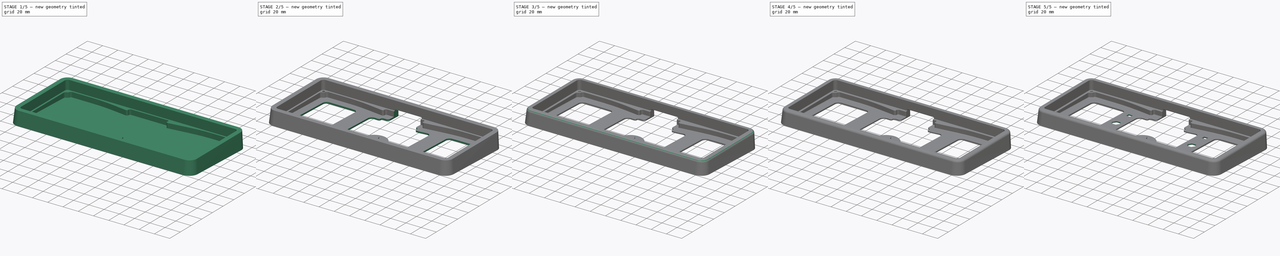
[diagram: build sequence overview — one tinted view per stage of 5, left to right]
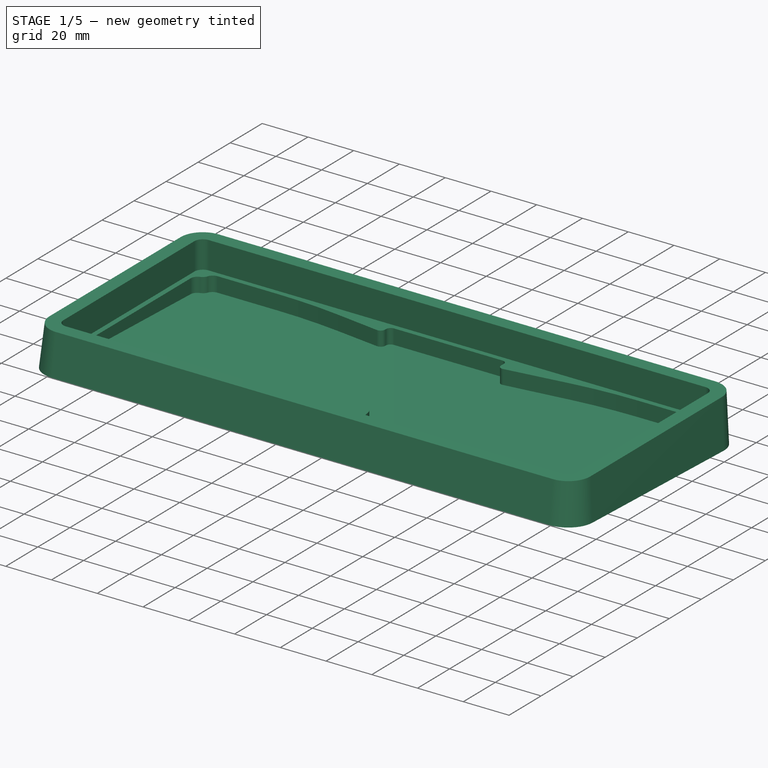
[diagram: stage 1 of 5 — iso view after this stage's code; geometry added in this stage tinted green]
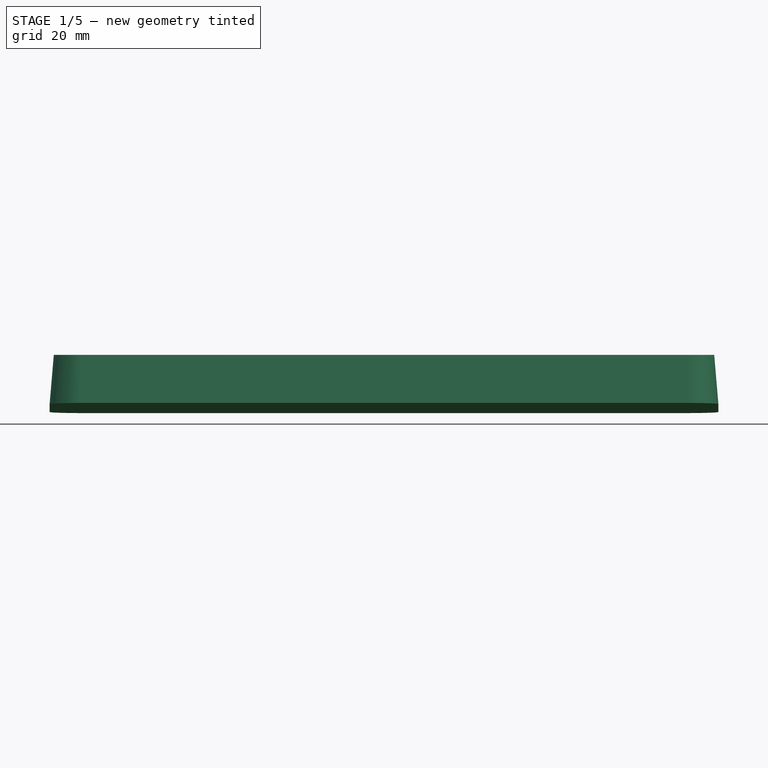
[diagram: stage 1 of 5 — front view after this stage's code; geometry added in this stage tinted green]
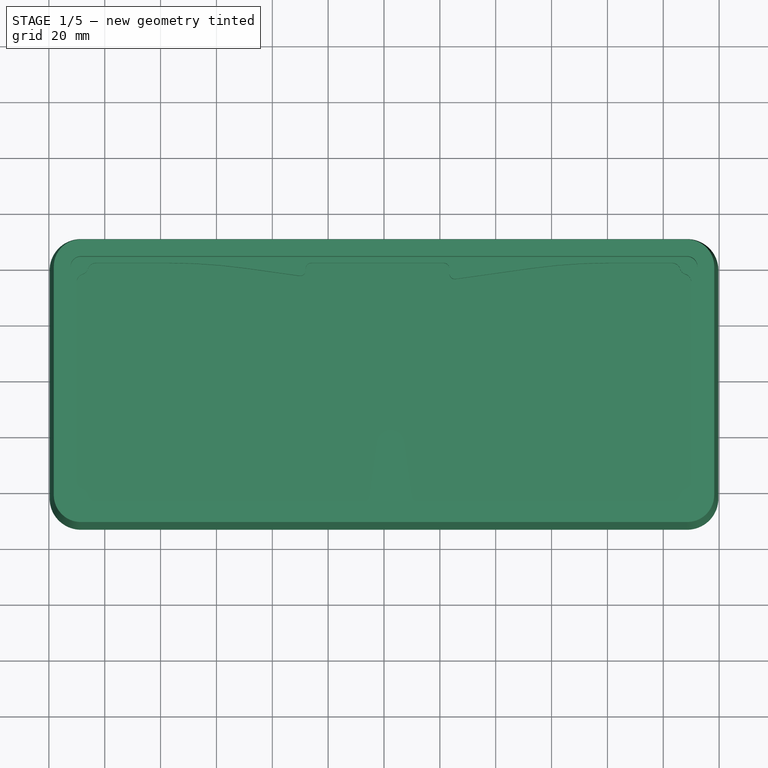
[diagram: stage 1 of 5 — top view after this stage's code; geometry added in this stage tinted green]
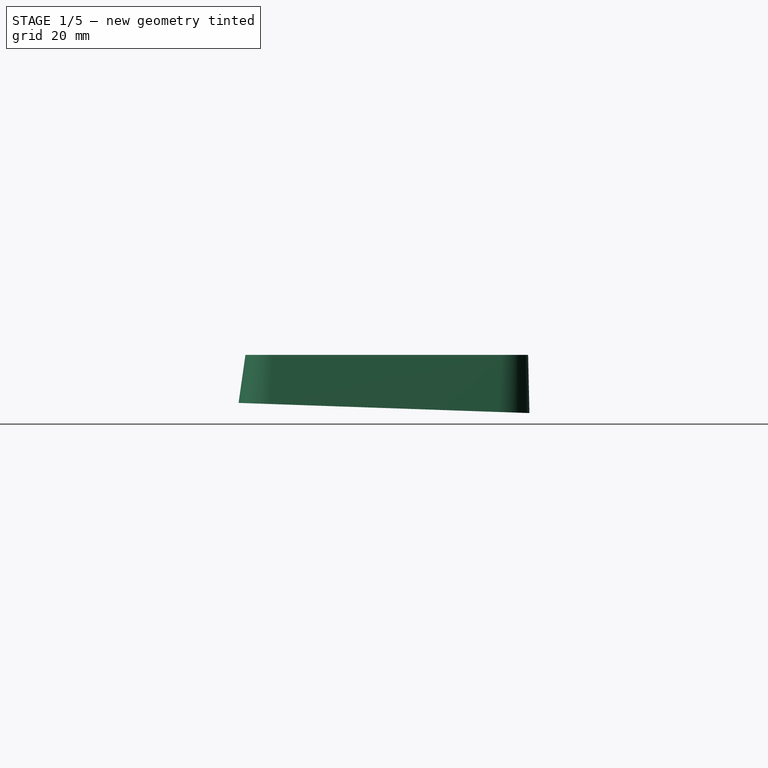
[diagram: stage 1 of 5 — right view after this stage's code; geometry added in this stage tinted green]
FCSTD DOCUMENT  (FreeCAD 0.20R)
Label: case
License: All rights reserved
LicenseURL: http://en.wikipedia.org/wiki/All_rights_reserved
objects: Sketcher::SketchObject×9, PartDesign::Fillet×8, PartDesign::Pocket×6, PartDesign::AdditiveLoft×1, PartDesign::Hole×1, PartDesign::Chamfer×1, PartDesign::Body×1
note: 44 computed .brp shape members not serialized (recipe doc carries the construction recipe); baked Part::Feature solids carry a one-line shape summary decoded from their .brp

FEATURE [Sketcher::SketchObject] Sketch
  AttachmentOffset = pos=(0,-1,0) rot=(1,0,0;-0.034907rad)
  FullyConstrained = false
  MapMode = 5
  Placement = pos=(0,-1,0) rot=(1,0,0;6.24828rad)
  Support = -> [XY_Plane]
  sketch-geometry (8):
    g0: LineSegment StartX=-119.737 StartY=40.9104 StartZ=0 EndX=-119.737 EndY=-40.9104 EndZ=0
    g1: LineSegment StartX=108.537 StartY=52.1104 StartZ=0 EndX=-108.537 EndY=52.1104 EndZ=0
    g2: LineSegment StartX=108.537 StartY=-52.1104 StartZ=0 EndX=-108.537 EndY=-52.1104 EndZ=0
    g3: ArcOfCircle CenterX=108.537 CenterY=-40.9104 CenterZ=0 NormalX=0 NormalY=0 NormalZ=1 AngleXU=0 Radius=11.2 StartAngle=4.71239 EndAngle=6.28319
    g4: ArcOfCircle CenterX=108.537 CenterY=40.9104 CenterZ=0 NormalX=0 NormalY=0 NormalZ=1 AngleXU=0 Radius=11.2 StartAngle=0 EndAngle=1.5708
    g5: LineSegment StartX=119.737 StartY=40.9104 StartZ=0 EndX=119.737 EndY=-40.9104 EndZ=0
    g6: ArcOfCircle CenterX=-108.537 CenterY=40.9104 CenterZ=0 NormalX=0 NormalY=0 NormalZ=1 AngleXU=0 Radius=11.2 StartAngle=1.5708 EndAngle=3.14159
    g7: ArcOfCircle CenterX=-108.537 CenterY=-40.9104 CenterZ=0 NormalX=0 NormalY=0 NormalZ=1 AngleXU=0 Radius=11.2 StartAngle=3.14159 EndAngle=4.71239
  constraints (8):
    c: Coincident(g0,g7)
    c: Coincident(g0,g6)
    c: Coincident(g2,g7)
    c: Coincident(g1,g6)
    c: Coincident(g2,g3)
    c: Coincident(g1,g4)
    c: Coincident(g3,g5)
    c: Coincident(g4,g5)
FEATURE [Sketcher::SketchObject] Sketch001
  AttachmentOffset = pos=(0,0,19) rot=(0,0,1;0rad)
  FullyConstrained = false
  MapMode = 5
  Placement = pos=(0,0,19) rot=(0,0,1;0rad)
  Support = -> [XY_Plane]
  sketch-geometry (8):
    g0: LineSegment StartX=118.237 StartY=40.9104 StartZ=0 EndX=118.237 EndY=-40.9104 EndZ=0
    g1: LineSegment StartX=108.537 StartY=-50.6104 StartZ=0 EndX=-108.537 EndY=-50.6104 EndZ=0
    g2: LineSegment StartX=108.537 StartY=50.6104 StartZ=0 EndX=-108.537 EndY=50.6104 EndZ=0
    g3: ArcOfCircle CenterX=108.537 CenterY=40.9104 CenterZ=0 NormalX=0 NormalY=0 NormalZ=1 AngleXU=0 Radius=9.7 StartAngle=0 EndAngle=1.5708
    g4: ArcOfCircle CenterX=108.537 CenterY=-40.9104 CenterZ=0 NormalX=0 NormalY=0 NormalZ=1 AngleXU=0 Radius=9.7 StartAngle=4.71239 EndAngle=6.28319
    g5: LineSegment StartX=-118.237 StartY=40.9104 StartZ=0 EndX=-118.237 EndY=-40.9104 EndZ=0
    g6: ArcOfCircle CenterX=-108.537 CenterY=-40.9104 CenterZ=0 NormalX=0 NormalY=0 NormalZ=1 AngleXU=0 Radius=9.7 StartAngle=3.14159 EndAngle=4.71239
    g7: ArcOfCircle CenterX=-108.537 CenterY=40.9104 CenterZ=0 NormalX=0 NormalY=0 NormalZ=1 AngleXU=0 Radius=9.7 StartAngle=1.5708 EndAngle=3.14159
  constraints (8):
    c: Coincident(g5,g6)
    c: Coincident(g5,g7)
    c: Coincident(g1,g6)
    c: Coincident(g2,g7)
    c: Coincident(g1,g4)
    c: Coincident(g2,g3)
    c: Coincident(g0,g4)
    c: Coincident(g0,g3)
FEATURE [PartDesign::AdditiveLoft] AdditiveLoft
  Closed = true
  Profile = -> Sketch001
  Ruled = true
  Sections = -> [Sketch]
FEATURE [Sketcher::SketchObject] Sketch002
  FullyConstrained = false
  MapMode = 5
  Placement = pos=(0,0,19) rot=(0,0,1;0rad)
  Support = -> [AdditiveLoft]
  sketch-geometry (8):
    g0: LineSegment StartX=108.537 StartY=44.6104 StartZ=0 EndX=-108.537 EndY=44.6104 EndZ=0
    g1: LineSegment StartX=108.537 StartY=-44.6104 StartZ=0 EndX=-108.537 EndY=-44.6104 EndZ=0
    g2: LineSegment StartX=112.237 StartY=40.9104 StartZ=0 EndX=112.237 EndY=-40.9104 EndZ=0
    g3: LineSegment StartX=-112.237 StartY=40.9104 StartZ=0 EndX=-112.237 EndY=-40.9104 EndZ=0
    g4: ArcOfCircle CenterX=-108.537 CenterY=40.9104 CenterZ=0 NormalX=0 NormalY=0 NormalZ=1 AngleXU=0 Radius=3.7 StartAngle=1.5708 EndAngle=3.14159
    g5: ArcOfCircle CenterX=-108.537 CenterY=-40.9104 CenterZ=0 NormalX=0 NormalY=0 NormalZ=1 AngleXU=0 Radius=3.7 StartAngle=3.14159 EndAngle=4.71239
    g6: ArcOfCircle CenterX=108.537 CenterY=-40.9104 CenterZ=0 NormalX=0 NormalY=0 NormalZ=1 AngleXU=0 Radius=3.7 StartAngle=4.71239 EndAngle=6.28319
    g7: ArcOfCircle CenterX=108.537 CenterY=40.9104 CenterZ=0 NormalX=0 NormalY=0 NormalZ=1 AngleXU=0 Radius=3.7 StartAngle=0 EndAngle=1.5708
  constraints (8):
    c: Coincident(g3,g5)
    c: Coincident(g3,g4)
    c: Coincident(g1,g5)
    c: Coincident(g0,g4)
    c: Coincident(g1,g6)
    c: Coincident(g0,g7)
    c: Coincident(g2,g6)
    c: Coincident(g2,g7)
FEATURE [PartDesign::Pocket] Pocket
  BaseFeature = -> AdditiveLoft
  Direction = (0,0,-1)
  Length = 12
  Length2 = 5
  Profile = -> Sketch002
  ReferenceAxis = -> Sketch002 [N_Axis]
  Type = 0
FEATURE [Sketcher::SketchObject] Sketch003
  FullyConstrained = false
  MapMode = 5
  Placement = pos=(0,0,7) rot=(0,0,1;0rad)
  Support = -> [Pocket]
  sketch-geometry (34):
    g0: LineSegment StartX=-110.037 StartY=35.515 StartZ=0 EndX=-110.037 EndY=-35.515 EndZ=0
    g1: LineSegment StartX=110.037 StartY=35.515 StartZ=0 EndX=110.037 EndY=-35.515 EndZ=0
    g2: ArcOfCircle CenterX=107.037 CenterY=35.515 CenterZ=0 NormalX=0 NormalY=0 NormalZ=1 AngleXU=0 Radius=3 StartAngle=0 EndAngle=1.26235
    g3: ArcOfCircle CenterX=103.142 CenterY=39.4104 CenterZ=0 NormalX=0 NormalY=0 NormalZ=1 AngleXU=0 Radius=3 StartAngle=0.308446 EndAngle=1.5708
    g4: ArcOfCircle CenterX=108.859 CenterY=41.2318 CenterZ=0 NormalX=0 NormalY=0 NormalZ=1 AngleXU=0 Radius=3 StartAngle=3.45004 EndAngle=4.40394
    g5: ArcOfCircle CenterX=-107.037 CenterY=35.515 CenterZ=0 NormalX=0 NormalY=0 NormalZ=1 AngleXU=0 Radius=3 StartAngle=1.87924 EndAngle=3.14159
    g6: ArcOfCircle CenterX=-103.142 CenterY=39.4104 CenterZ=0 NormalX=0 NormalY=0 NormalZ=1 AngleXU=0 Radius=3 StartAngle=1.5708 EndAngle=2.83315
    g7: ArcOfCircle CenterX=-108.859 CenterY=41.2318 CenterZ=0 NormalX=0 NormalY=0 NormalZ=1 AngleXU=0 Radius=3 StartAngle=5.02084 EndAngle=5.97474
    g8: ArcOfCircle CenterX=-107.037 CenterY=-35.515 CenterZ=0 NormalX=0 NormalY=0 NormalZ=1 AngleXU=0 Radius=3 StartAngle=3.14159 EndAngle=4.40394
    g9: ArcOfCircle CenterX=107.037 CenterY=-35.515 CenterZ=0 NormalX=0 NormalY=0 NormalZ=1 AngleXU=0 Radius=3 StartAngle=5.02084 EndAngle=6.28319
    g10: ArcOfCircle CenterX=2.38671 CenterY=-22.3385 CenterZ=0 NormalX=0 NormalY=0 NormalZ=1 AngleXU=0 Radius=5 StartAngle=0.139626 EndAngle=3.00197
    g11: ArcOfCircle CenterX=-26.0434 CenterY=40.4104 CenterZ=0 NormalX=0 NormalY=0 NormalZ=1 AngleXU=0 Radius=2 StartAngle=1.5708 EndAngle=3.14159
    g12: LineSegment StartX=-28.0434 StartY=40.4104 StartZ=0 EndX=-28.0434 EndY=39.793 EndZ=0
    g13: ArcOfCircle CenterX=-30.0434 CenterY=39.793 CenterZ=0 NormalX=0 NormalY=0 NormalZ=1 AngleXU=0 Radius=2 StartAngle=4.57276 EndAngle=6.28319
    g14: LineSegment StartX=21.3838 StartY=42.4104 StartZ=0 EndX=-26.0434 EndY=42.4104 EndZ=0
    g15: ArcOfCircle CenterX=21.3838 CenterY=40.4104 CenterZ=0 NormalX=0 NormalY=0 NormalZ=1 AngleXU=0 Radius=2 StartAngle=0 EndAngle=1.5708
    g16: LineSegment StartX=23.3838 StartY=40.4104 StartZ=0 EndX=23.3838 EndY=38.6519 EndZ=0
    g17: ArcOfCircle CenterX=25.3838 CenterY=38.6519 CenterZ=0 NormalX=0 NormalY=0 NormalZ=1 AngleXU=0 Radius=2 StartAngle=3.14159 EndAngle=4.85202
    g18: LineSegment StartX=25.6622 StartY=36.6714 StartZ=0 EndX=52.6478 EndY=40.464 EndZ=0
    g19: LineSegment StartX=103.142 StartY=42.4104 StartZ=0 EndX=80.4824 EndY=42.4104 EndZ=0
    g20: ArcOfCircle CenterX=80.4824 CenterY=-157.59 CenterZ=0 NormalX=0 NormalY=0 NormalZ=1 AngleXU=0 Radius=200 StartAngle=1.5708 EndAngle=1.71042
    g21: LineSegment StartX=-49.1884 StartY=40.464 StartZ=0 EndX=-30.3218 EndY=37.8124 EndZ=0
    g22: LineSegment StartX=-77.0231 StartY=42.4104 StartZ=0 EndX=-103.142 EndY=42.4104 EndZ=0
    g23: ArcOfCircle CenterX=-77.0231 CenterY=-157.59 CenterZ=0 NormalX=0 NormalY=0 NormalZ=1 AngleXU=0 Radius=200 StartAngle=1.43117 EndAngle=1.5708
    g24: ArcOfCircle CenterX=-108.859 CenterY=-41.2318 CenterZ=0 NormalX=0 NormalY=0 NormalZ=1 AngleXU=0 Radius=3 StartAngle=0.222066 EndAngle=1.26235
    g25: ArcOfCircle CenterX=-103.006 CenterY=-39.9104 CenterZ=0 NormalX=0 NormalY=0 NormalZ=1 AngleXU=0 Radius=3 StartAngle=3.36366 EndAngle=4.71239
    g26: ArcOfCircle CenterX=108.859 CenterY=-41.2318 CenterZ=0 NormalX=0 NormalY=0 NormalZ=1 AngleXU=0 Radius=3 StartAngle=1.87924 EndAngle=2.91953
    g27: ArcOfCircle CenterX=103.006 CenterY=-39.9104 CenterZ=0 NormalX=0 NormalY=0 NormalZ=1 AngleXU=0 Radius=3 StartAngle=4.71239 EndAngle=6.06112
    g28: LineSegment StartX=103.006 StartY=-42.9104 StartZ=0 EndX=12.0656 EndY=-42.9104 EndZ=0
    g29: LineSegment StartX=10.0851 StartY=-41.1887 StartZ=0 EndX=7.33805 EndY=-21.6426 EndZ=0
    g30: ArcOfCircle CenterX=12.0656 CenterY=-40.9104 CenterZ=0 NormalX=0 NormalY=0 NormalZ=1 AngleXU=0 Radius=2 StartAngle=3.28122 EndAngle=4.71239
    g31: LineSegment StartX=-7.29219 StartY=-42.9104 StartZ=0 EndX=-103.006 EndY=-42.9104 EndZ=0
    g32: LineSegment StartX=-5.31166 StartY=-41.1887 StartZ=0 EndX=-2.56463 EndY=-21.6426 EndZ=0
    g33: ArcOfCircle CenterX=-7.29219 CenterY=-40.9104 CenterZ=0 NormalX=0 NormalY=0 NormalZ=1 AngleXU=0 Radius=2 StartAngle=4.71239 EndAngle=6.14356
  constraints (34):
    c: Coincident(g0,g8)
    c: Coincident(g0,g5)
    c: Coincident(g8,g24)
    c: Coincident(g5,g7)
    c: Coincident(g6,g7)
    c: Coincident(g24,g25)
    c: Coincident(g6,g22)
    c: Coincident(g25,g31)
    c: Coincident(g22,g23)
    c: Coincident(g21,g23)
    c: Coincident(g13,g21)
    c: Coincident(g12,g13)
    c: Coincident(g11,g12)
    c: Coincident(g11,g14)
    c: Coincident(g31,g33)
    c: Coincident(g32,g33)
    c: Coincident(g10,g32)
    c: Coincident(g10,g29)
    c: Coincident(g29,g30)
    c: Coincident(g28,g30)
    c: Coincident(g14,g15)
    c: Coincident(g16,g17)
    c: Coincident(g15,g16)
    c: Coincident(g17,g18)
    c: Coincident(g18,g20)
    c: Coincident(g19,g20)
    c: Coincident(g27,g28)
    c: Coincident(g3,g19)
    c: Coincident(g26,g27)
    c: Coincident(g3,g4)
    c: Coincident(g9,g26)
    c: Coincident(g2,g4)
    c: Coincident(g1,g9)
    c: Coincident(g1,g2)
FEATURE [PartDesign::Pocket] Pocket001
  BaseFeature = -> Pocket
  Direction = (0,0,-1)
  Length = 0
  Length2 = 5
  Offset = -2
  Profile = -> Sketch003
  ReferenceAxis = -> Sketch003 [N_Axis]
  Type = 3
  UpToFace = -> Pocket [Face18]
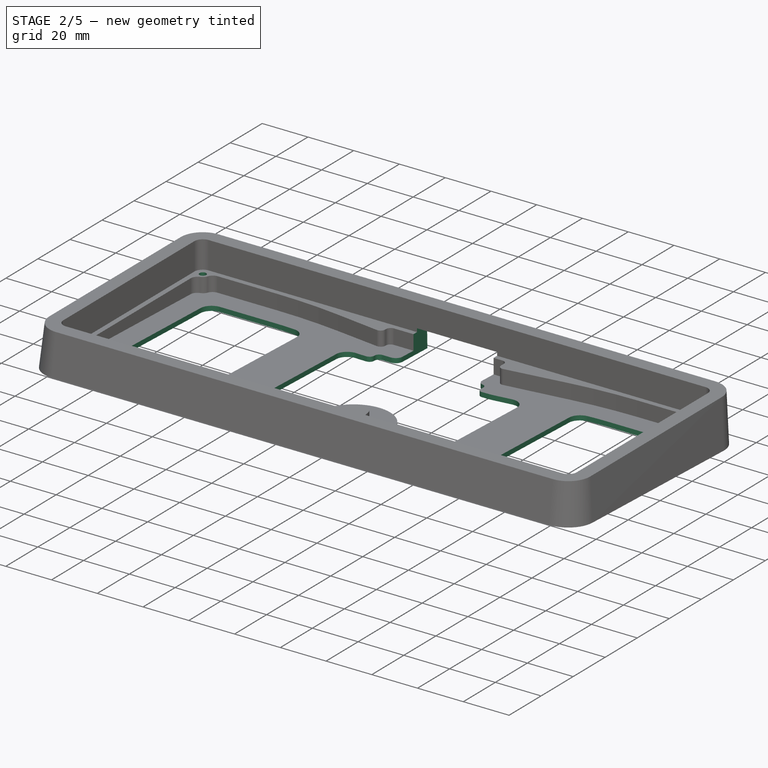
[diagram: stage 2 of 5 — iso view after this stage's code; geometry added in this stage tinted green]
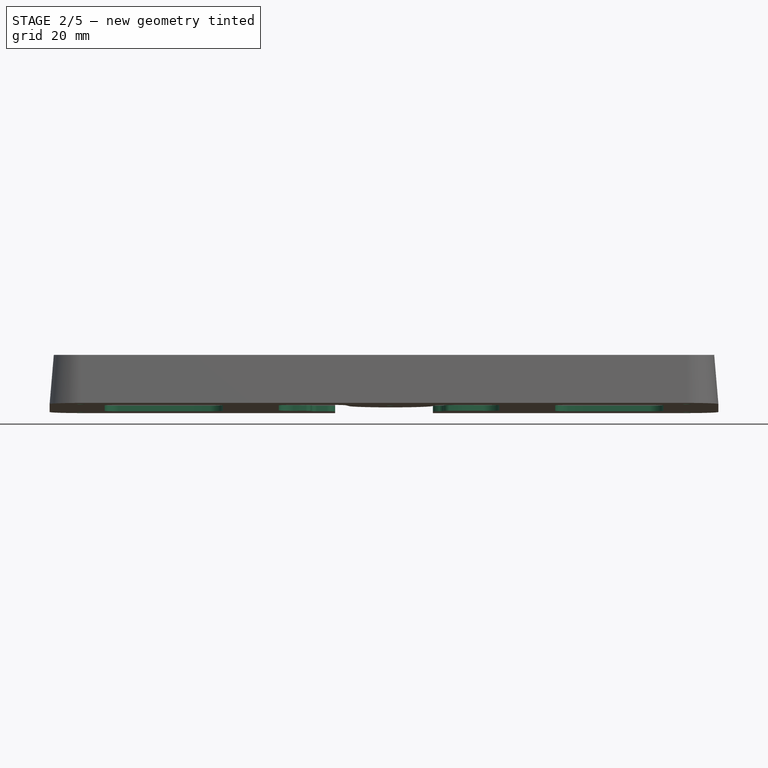
[diagram: stage 2 of 5 — front view after this stage's code; geometry added in this stage tinted green]
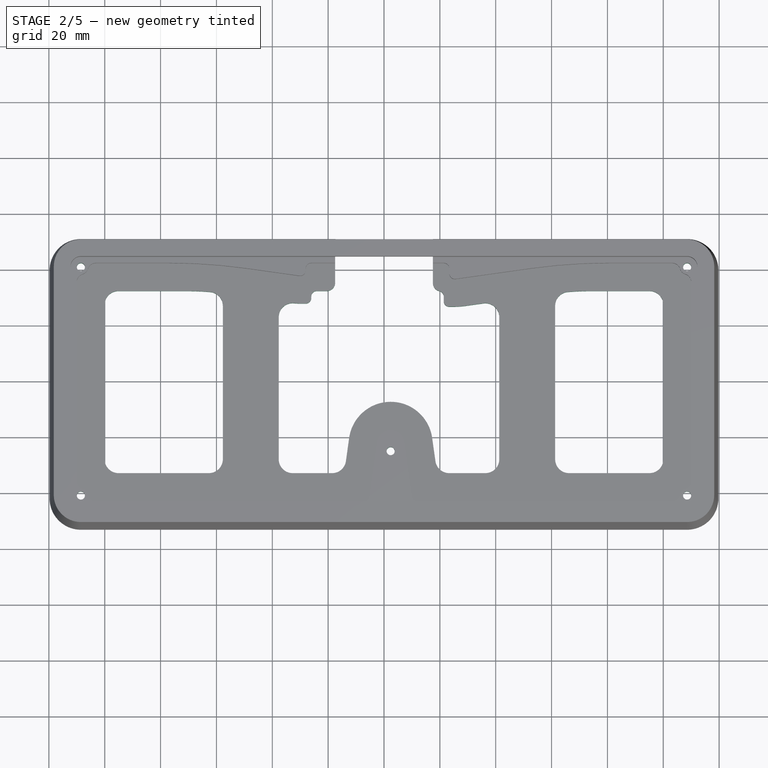
[diagram: stage 2 of 5 — top view after this stage's code; geometry added in this stage tinted green]
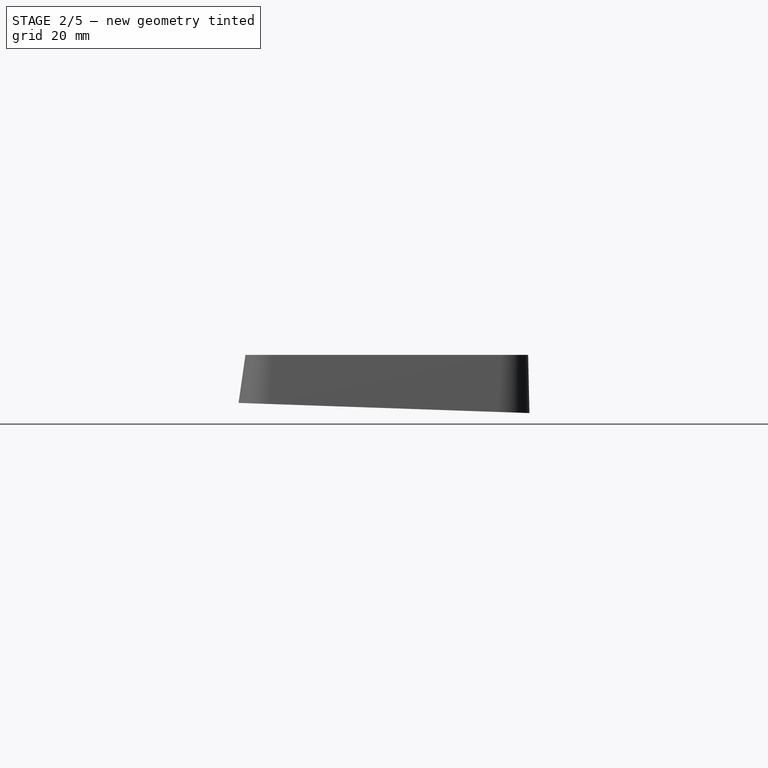
[diagram: stage 2 of 5 — right view after this stage's code; geometry added in this stage tinted green]
FEATURE [Sketcher::SketchObject] Sketch004
  FullyConstrained = false
  MapMode = 5
  Placement = pos=(0,0,7) rot=(0,0,1;0rad)
  Support = -> [Pocket]
  sketch-geometry (5):
    g0: Circle CenterX=108.537 CenterY=40.9104 CenterZ=0 NormalX=0 NormalY=0 NormalZ=-1 AngleXU=0 Radius=1.1
    g1: Circle CenterX=108.537 CenterY=-40.9104 CenterZ=0 NormalX=0 NormalY=0 NormalZ=-1 AngleXU=0 Radius=1.1
    g2: Circle CenterX=-108.537 CenterY=-40.9104 CenterZ=0 NormalX=0 NormalY=0 NormalZ=-1 AngleXU=0 Radius=1.1
    g3: Circle CenterX=-108.537 CenterY=40.9104 CenterZ=0 NormalX=0 NormalY=0 NormalZ=-1 AngleXU=0 Radius=1.1
    g4: Circle CenterX=2.37398 CenterY=-25.0047 CenterZ=0 NormalX=0 NormalY=0 NormalZ=-1 AngleXU=0 Radius=1.1
FEATURE [PartDesign::Hole] Hole
  BaseFeature = -> Pocket001
  CustomThreadClearance = 0
  Depth = 25
  DepthType = 0
  Diameter = 2.9
  DrillForDepth = false
  DrillPoint = 1
  DrillPointAngle = 118
  HoleCutCountersinkAngle = 90
  HoleCutCustomValues = false
  HoleCutDepth = 0
  HoleCutDiameter = 6.1
  HoleCutType = 0
  ModelThread = false
  Profile = -> Sketch004
  Tapered = false
  TaperedAngle = 90
  ThreadClass = 0
  ThreadDepth = 25
  ThreadDepthType = 0
  ThreadDirection = 0
  ThreadFit = 0
  ThreadSize = 8
  ThreadType = 1
  Threaded = false
  UseCustomThreadClearance = false
FEATURE [Sketcher::SketchObject] Sketch005
  FullyConstrained = false
  MapMode = 5
  Placement = pos=(0,0.0685385,1.96269) rot=(-1,0,0;0.034907rad)
  Support = -> [Pocket001]
  sketch-geometry (43):
    g0: ArcOfCircle CenterX=2.38671 CenterY=-22.3385 CenterZ=0 NormalX=0 NormalY=0 NormalZ=1 AngleXU=0 Radius=15 StartAngle=0.139626 EndAngle=3.00197
    g1: ArcOfCircle CenterX=-95.0373 CenterY=27.4104 CenterZ=0 NormalX=0 NormalY=0 NormalZ=1 AngleXU=0 Radius=5 StartAngle=1.5708 EndAngle=3.14159
    g2: LineSegment StartX=-100.037 StartY=27.4104 StartZ=0 EndX=-100.037 EndY=-27.9104 EndZ=0
    g3: ArcOfCircle CenterX=-95.0373 CenterY=-27.9104 CenterZ=0 NormalX=0 NormalY=0 NormalZ=1 AngleXU=0 Radius=5 StartAngle=3.14159 EndAngle=4.71239
    g4: LineSegment StartX=-13.6416 StartY=-28.6062 StartZ=0 EndX=-12.4673 EndY=-20.2509 EndZ=0
    g5: ArcOfCircle CenterX=-18.5929 CenterY=-27.9104 CenterZ=0 NormalX=0 NormalY=0 NormalZ=1 AngleXU=0 Radius=5 StartAngle=4.71239 EndAngle=6.14356
    g6: LineSegment StartX=18.415 StartY=-28.6062 StartZ=0 EndX=17.2407 EndY=-20.2509 EndZ=0
    g7: ArcOfCircle CenterX=23.3663 CenterY=-27.9104 CenterZ=0 NormalX=0 NormalY=0 NormalZ=1 AngleXU=0 Radius=5 StartAngle=3.28122 EndAngle=4.71239
    g8: ArcOfCircle CenterX=95.0373 CenterY=-27.9104 CenterZ=0 NormalX=0 NormalY=0 NormalZ=1 AngleXU=0 Radius=5 StartAngle=4.71239 EndAngle=6.28319
    g9: LineSegment StartX=100.037 StartY=27.4104 StartZ=0 EndX=100.037 EndY=-27.9104 EndZ=0
    g10: ArcOfCircle CenterX=95.0373 CenterY=27.4104 CenterZ=0 NormalX=0 NormalY=0 NormalZ=1 AngleXU=0 Radius=5 StartAngle=0 EndAngle=1.5708
    g11: LineSegment StartX=95.0373 StartY=32.4104 StartZ=0 EndX=74.189 EndY=32.4104 EndZ=0
    g12: LineSegment StartX=-70.7296 StartY=32.4104 StartZ=0 EndX=-95.0373 EndY=32.4104 EndZ=0
    g13: ArcOfCircle CenterX=-28.0434 CenterY=29.9098 CenterZ=0 NormalX=0 NormalY=0 NormalZ=1 AngleXU=0 Radius=2 StartAngle=4.71239 EndAngle=6.28319
    g14: LineSegment StartX=-26.0434 StartY=30.4104 StartZ=0 EndX=-26.0434 EndY=29.9098 EndZ=0
    g15: ArcOfCircle CenterX=-24.0434 CenterY=30.4104 CenterZ=0 NormalX=0 NormalY=0 NormalZ=1 AngleXU=0 Radius=2 StartAngle=1.5708 EndAngle=3.14159
    g16: LineSegment StartX=19.3838 StartY=32.4104 StartZ=0 EndX=-24.0434 EndY=32.4104 EndZ=0
    g17: ArcOfCircle CenterX=19.3838 CenterY=30.4104 CenterZ=0 NormalX=0 NormalY=0 NormalZ=1 AngleXU=0 Radius=2 StartAngle=0 EndAngle=1.5708
    g18: LineSegment StartX=21.3838 StartY=30.4104 StartZ=0 EndX=21.3838 EndY=28.7687 EndZ=0
    g19: ArcOfCircle CenterX=23.3838 CenterY=28.7687 CenterZ=0 NormalX=0 NormalY=0 NormalZ=1 AngleXU=0 Radius=2 StartAngle=3.14159 EndAngle=4.71239
    g20: LineSegment StartX=23.3838 StartY=26.7687 StartZ=0 EndX=24.9561 EndY=26.7687 EndZ=0
    g21: ArcOfCircle CenterX=24.9561 CenterY=56.7687 CenterZ=0 NormalX=0 NormalY=0 NormalZ=1 AngleXU=0 Radius=30 StartAngle=4.71239 EndAngle=4.85202
    g22: LineSegment StartX=-29.6157 StartY=27.9098 StartZ=0 EndX=-28.0434 EndY=27.9098 EndZ=0
    g23: ArcOfCircle CenterX=74.189 CenterY=-67.5896 CenterZ=0 NormalX=0 NormalY=0 NormalZ=1 AngleXU=0 Radius=100 StartAngle=1.5708 EndAngle=1.6541
    g24: ArcOfCircle CenterX=66.2841 CenterY=27.0809 CenterZ=0 NormalX=0 NormalY=0 NormalZ=1 AngleXU=0 Radius=5 StartAngle=1.6541 EndAngle=3.14159
    g25: LineSegment StartX=95.0373 StartY=-32.9104 StartZ=0 EndX=66.2841 EndY=-32.9104 EndZ=0
    g26: LineSegment StartX=61.2841 StartY=27.0809 StartZ=0 EndX=61.2841 EndY=-27.9104 EndZ=0
    g27: ArcOfCircle CenterX=66.2841 CenterY=-27.9104 CenterZ=0 NormalX=0 NormalY=0 NormalZ=1 AngleXU=0 Radius=5 StartAngle=3.14159 EndAngle=4.71239
    g28: LineSegment StartX=36.2841 StartY=-32.9104 StartZ=0 EndX=23.3663 EndY=-32.9104 EndZ=0
    g29: ArcOfCircle CenterX=36.2841 CenterY=-27.9104 CenterZ=0 NormalX=0 NormalY=0 NormalZ=1 AngleXU=0 Radius=5 StartAngle=4.71239 EndAngle=6.28319
    g30: LineSegment StartX=29.1313 StartY=27.0607 StartZ=0 EndX=35.5882 EndY=27.9681 EndZ=0
    g31: LineSegment StartX=41.2841 StartY=23.0168 StartZ=0 EndX=41.2841 EndY=-27.9104 EndZ=0
    g32: ArcOfCircle CenterX=36.2841 CenterY=23.0168 CenterZ=0 NormalX=0 NormalY=0 NormalZ=1 AngleXU=0 Radius=5 StartAngle=0 EndAngle=1.71042
    g33: LineSegment StartX=-62.704 StartY=-32.9104 StartZ=0 EndX=-95.0373 EndY=-32.9104 EndZ=0
    g34: ArcOfCircle CenterX=-62.704 CenterY=-27.9104 CenterZ=0 NormalX=0 NormalY=0 NormalZ=1 AngleXU=0 Radius=5 StartAngle=4.71239 EndAngle=6.28319
    g35: LineSegment StartX=-57.704 StartY=27.0708 StartZ=0 EndX=-57.704 EndY=-27.9104 EndZ=0
    g36: ArcOfCircle CenterX=-70.7296 CenterY=-67.5896 CenterZ=0 NormalX=0 NormalY=0 NormalZ=1 AngleXU=0 Radius=100 StartAngle=1.48622 EndAngle=1.5708
    g37: ArcOfCircle CenterX=-62.704 CenterY=27.0708 CenterZ=0 NormalX=0 NormalY=0 NormalZ=1 AngleXU=0 Radius=5 StartAngle=0 EndAngle=1.48622
    g38: LineSegment StartX=-18.5929 StartY=-32.9104 StartZ=0 EndX=-32.704 EndY=-32.9104 EndZ=0
    g39: ArcOfCircle CenterX=-32.704 CenterY=-27.9104 CenterZ=0 NormalX=0 NormalY=0 NormalZ=1 AngleXU=0 Radius=5 StartAngle=3.14159 EndAngle=4.71239
    g40: LineSegment StartX=-37.704 StartY=23.0463 StartZ=0 EndX=-37.704 EndY=-27.9104 EndZ=0
    g41: ArcOfCircle CenterX=-29.6157 CenterY=57.9098 CenterZ=0 NormalX=0 NormalY=0 NormalZ=1 AngleXU=0 Radius=30 StartAngle=4.62404 EndAngle=4.71239
    g42: ArcOfCircle CenterX=-32.704 CenterY=23.0463 CenterZ=0 NormalX=0 NormalY=0 NormalZ=1 AngleXU=0 Radius=5 StartAngle=1.48244 EndAngle=3.14159
  constraints (43):
    c: Coincident(g2,g3)
    c: Coincident(g1,g2)
    c: Coincident(g3,g33)
    c: Coincident(g1,g12)
    c: Coincident(g12,g36)
    c: Coincident(g33,g34)
    c: Coincident(g36,g37)
    c: Coincident(g34,g35)
    c: Coincident(g35,g37)
    c: Coincident(g39,g40)
    c: Coincident(g40,g42)
    c: Coincident(g38,g39)
    c: Coincident(g41,g42)
    c: Coincident(g22,g41)
    c: Coincident(g13,g22)
    c: Coincident(g13,g14)
    c: Coincident(g14,g15)
    c: Coincident(g15,g16)
    c: Coincident(g5,g38)
    c: Coincident(g4,g5)
    c: Coincident(g0,g4)
    c: Coincident(g0,g6)
    c: Coincident(g6,g7)
    c: Coincident(g16,g17)
    c: Coincident(g18,g19)
    c: Coincident(g17,g18)
    c: Coincident(g7,g28)
    c: Coincident(g19,g20)
    c: Coincident(g20,g21)
    c: Coincident(g21,g30)
    c: Coincident(g30,g32)
    c: Coincident(g28,g29)
    c: Coincident(g29,g31)
    c: Coincident(g31,g32)
    c: Coincident(g26,g27)
    c: Coincident(g24,g26)
    c: Coincident(g23,g24)
    c: Coincident(g25,g27)
    c: Coincident(g11,g23)
    c: Coincident(g8,g25)
    c: Coincident(g10,g11)
    c: Coincident(g8,g9)
    c: Coincident(g9,g10)
FEATURE [PartDesign::Pocket] Pocket002
  BaseFeature = -> Hole
  Direction = (0,-0.0348995,-0.999391)
  Length = 5
  Length2 = 5
  Profile = -> Sketch005
  ReferenceAxis = -> Sketch005 [N_Axis]
  Type = 1
FEATURE [Sketcher::SketchObject] Sketch006
  FullyConstrained = true
  MapMode = 5
  Placement = pos=(0,-0.00121797,-0.0348782) rot=(1,0,0;3.10669rad)
  Support = -> [Pocket002]
  sketch-geometry (4):
    g0: LineSegment StartX=-17.5 StartY=-20 StartZ=0 EndX=17.5 EndY=-20 EndZ=0
    g1: LineSegment StartX=17.5 StartY=-20 StartZ=0 EndX=17.5 EndY=-70 EndZ=0
    g2: LineSegment StartX=17.5 StartY=-70 StartZ=0 EndX=-17.5 EndY=-70 EndZ=0
    g3: LineSegment StartX=-17.5 StartY=-70 StartZ=0 EndX=-17.5 EndY=-20 EndZ=0
  constraints (11):
    c: Coincident(g0,g1)
    c: Coincident(g1,g2)
    c: Coincident(g2,g3)
    c: Coincident(g3,g0)
    c: Horizontal(g2)
    c: Vertical(g1)
    c: Vertical(g3)
    c: Symmetric(g0,g0,g-2)
    c: DistanceY(g0,g-1) = 20
    c: DistanceY(g1,g1) = 50
    c: DistanceX(g2,g2) = 35
FEATURE [PartDesign::Pocket] Pocket003
  BaseFeature = -> Pocket002
  Direction = (0,0.0348995,0.999391)
  Length = 0
  Length2 = 5
  Offset = 1.5
  Profile = -> Sketch006
  ReferenceAxis = -> Sketch006 [N_Axis]
  Type = 3
  UpToFace = -> Pocket002 [Face19]
FEATURE [PartDesign::Fillet] Fillet
  Base = -> Pocket003 [Edge117,Edge108]
  BaseFeature = -> Pocket003
  Radius = 3
  SupportTransform = false
  UseAllEdges = false
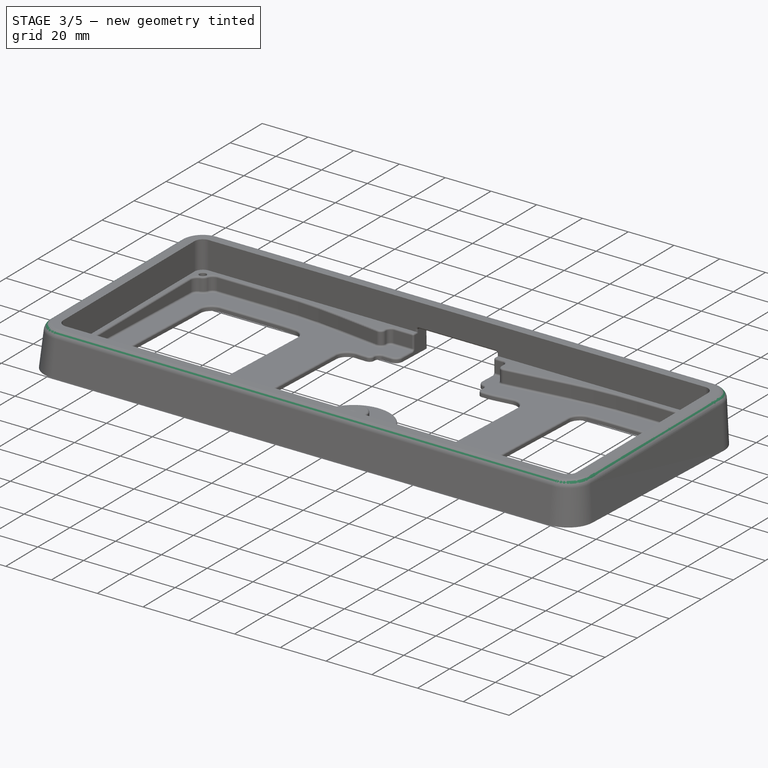
[diagram: stage 3 of 5 — iso view after this stage's code; geometry added in this stage tinted green]
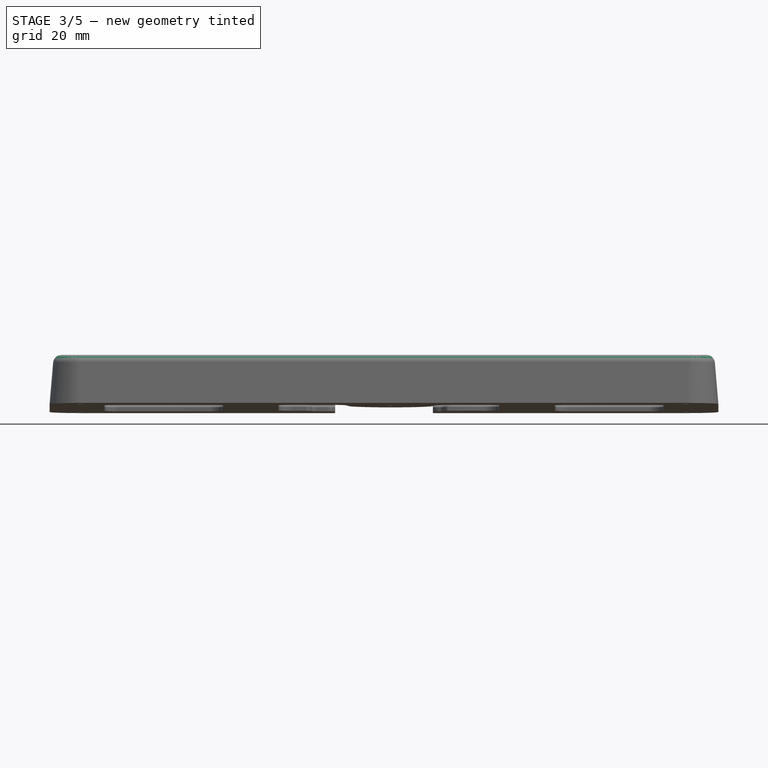
[diagram: stage 3 of 5 — front view after this stage's code; geometry added in this stage tinted green]
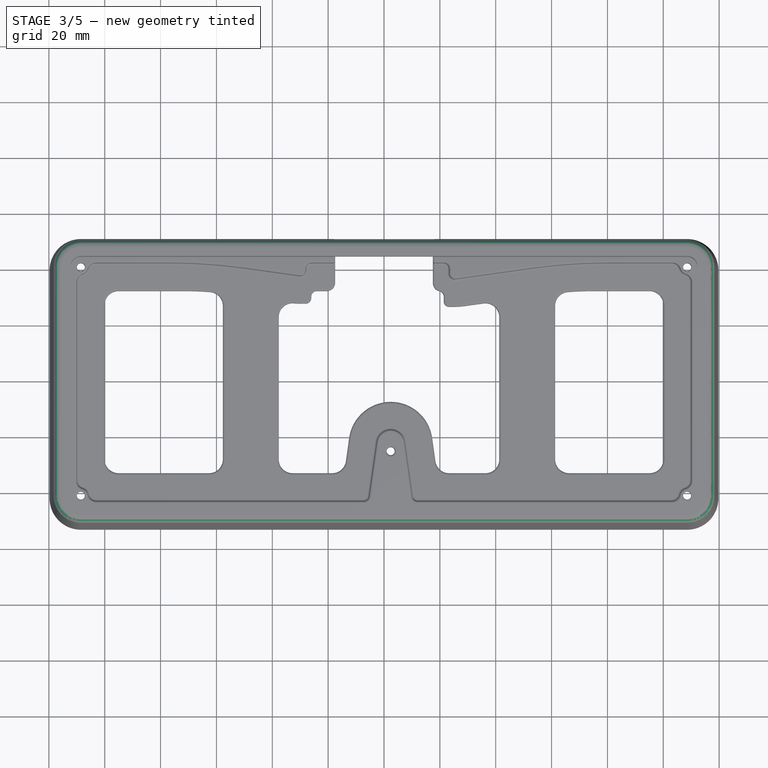
[diagram: stage 3 of 5 — top view after this stage's code; geometry added in this stage tinted green]
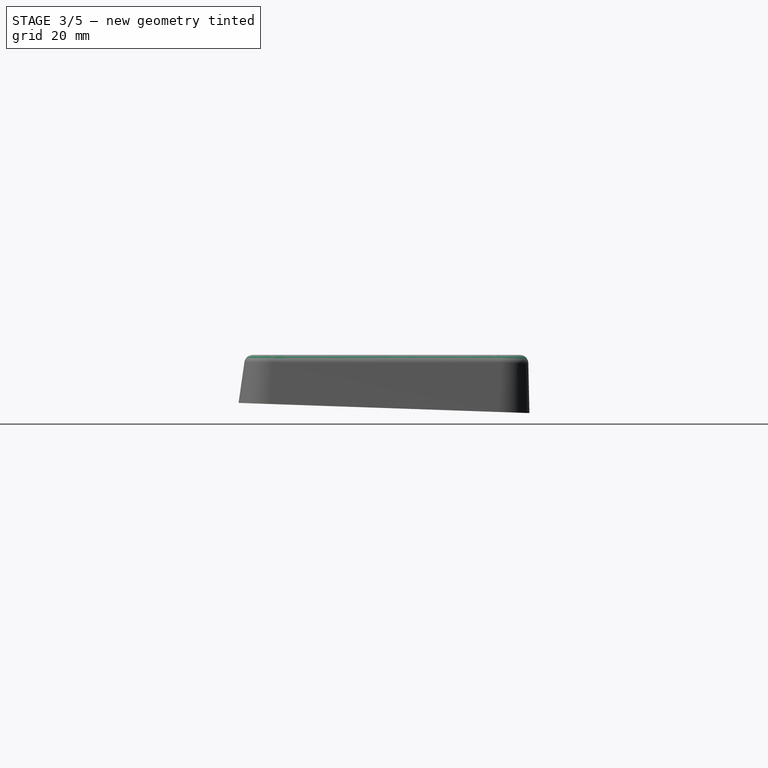
[diagram: stage 3 of 5 — right view after this stage's code; geometry added in this stage tinted green]
FEATURE [PartDesign::Fillet] Fillet001
  Base = -> Fillet [Edge66,Face62,Edge110,Edge270,Edge68,Edge112,Edge65,Edge109,Edge227,Edge67,Edge111,Edge63,Edge73,Edge74,Edge167]
  BaseFeature = -> Fillet
  Radius = 0.7
  SupportTransform = false
  UseAllEdges = false
FEATURE [PartDesign::Fillet] Fillet002
  Base = -> Fillet001 [Edge181,Edge201,Edge157,Edge179]
  BaseFeature = -> Fillet001
  Radius = 0.4
  SupportTransform = false
  UseAllEdges = false
FEATURE [PartDesign::Fillet] Fillet003
  Base = -> Fillet002 [Edge164]
  BaseFeature = -> Fillet002
  Radius = 3
  SupportTransform = false
  UseAllEdges = false
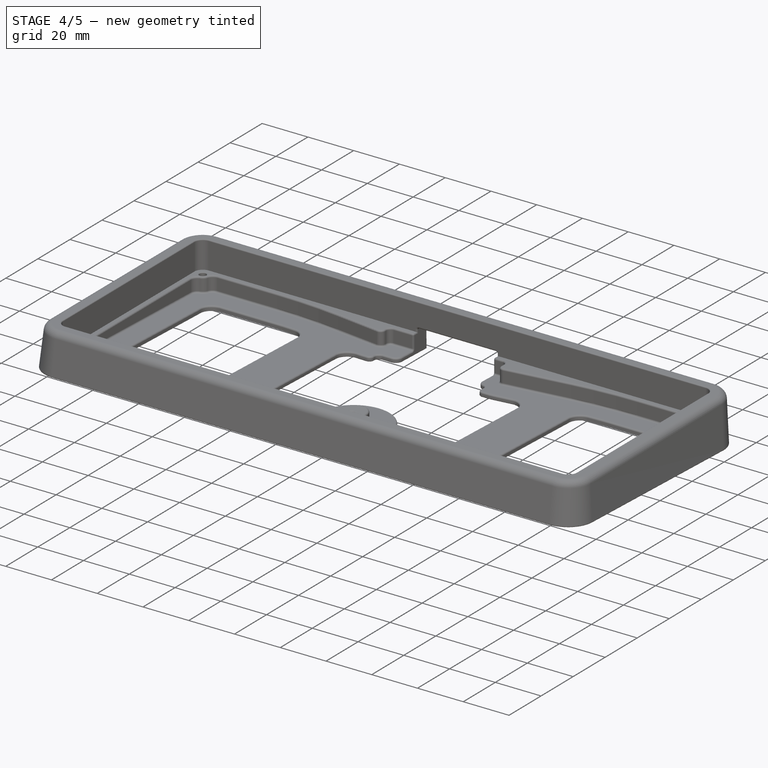
[diagram: stage 4 of 5 — iso view after this stage's code; geometry added in this stage tinted green]
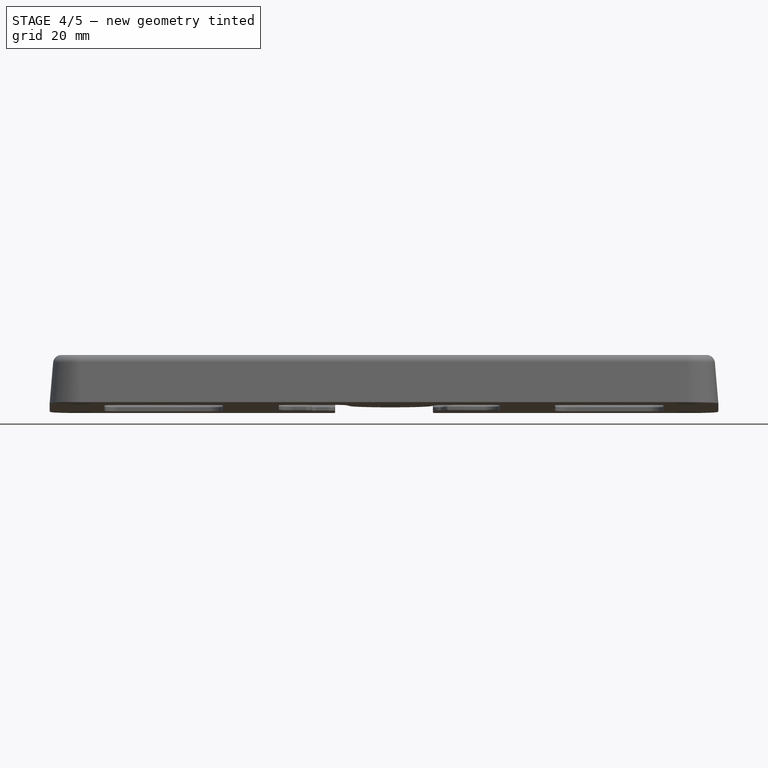
[diagram: stage 4 of 5 — front view after this stage's code; geometry added in this stage tinted green]
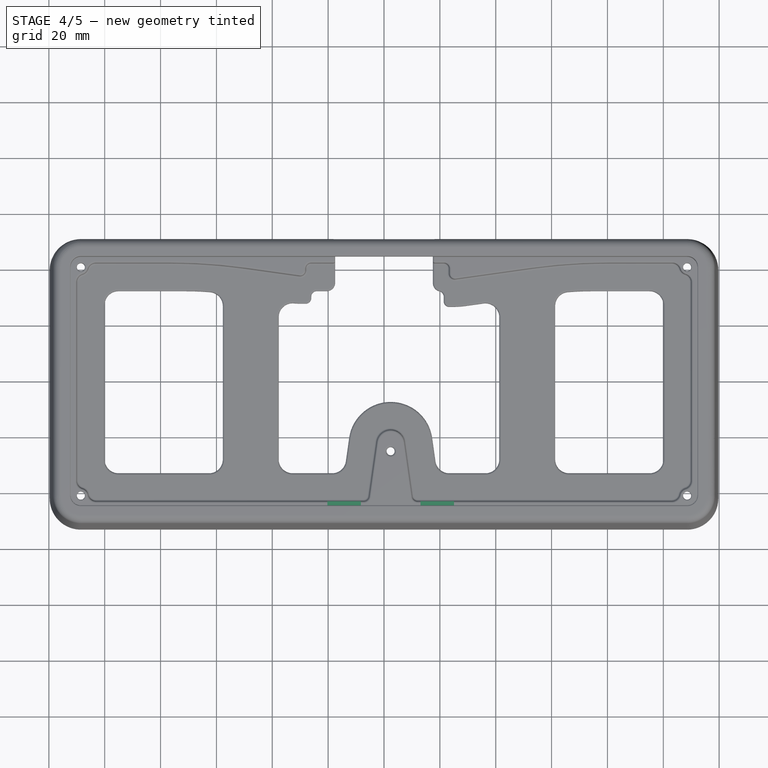
[diagram: stage 4 of 5 — top view after this stage's code; geometry added in this stage tinted green]
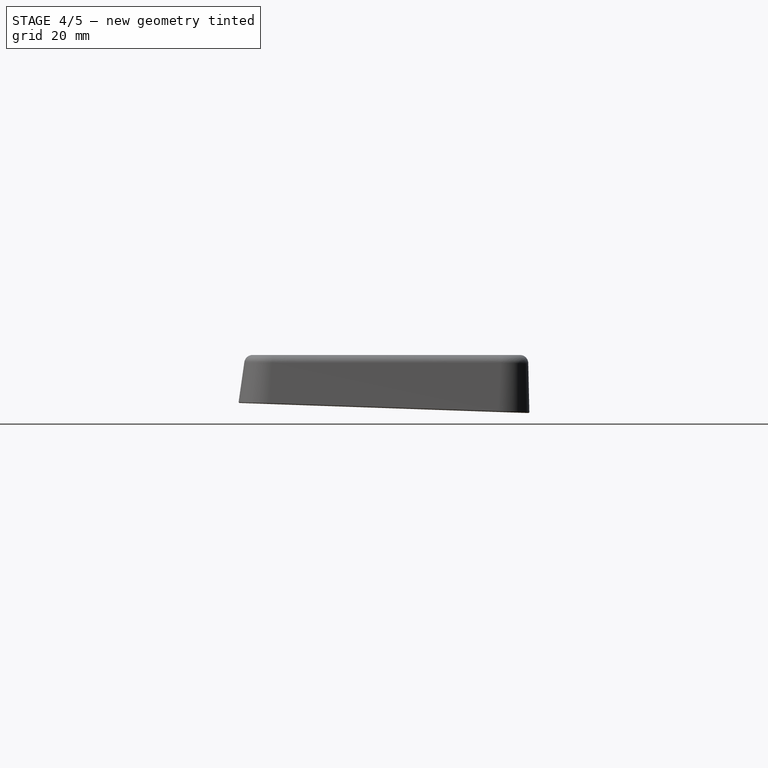
[diagram: stage 4 of 5 — right view after this stage's code; geometry added in this stage tinted green]
FEATURE [PartDesign::Fillet] Fillet004
  Base = -> Fillet003 [Edge101,Edge26]
  BaseFeature = -> Fillet003
  Radius = 0.4
  SupportTransform = false
  UseAllEdges = false
FEATURE [PartDesign::Chamfer] Chamfer
  Angle = 45
  Base = -> Fillet004 [Edge81,Edge92,Edge91,Edge93,Edge103]
  BaseFeature = -> Fillet004
  ChamferType = 0
  FlipDirection = false
  Size = 3
  Size2 = 1
  SupportTransform = false
  UseAllEdges = false
FEATURE [PartDesign::Fillet] Fillet005
  Base = -> Chamfer [Face2,Face61,Face62,Face63,Face64]
  BaseFeature = -> Chamfer
  Radius = 0.5
  SupportTransform = false
  UseAllEdges = false
FEATURE [Sketcher::SketchObject] Sketch007
  ExternalGeometry = -> [Pocket003]
  FullyConstrained = true
  MapMode = 5
  Placement = pos=(0,0,7) rot=(0,0,1;0rad)
  Support = -> [Pocket003]
  sketch-geometry (8):
    g0: LineSegment StartX=-8.29219 StartY=-40.6104 StartZ=0 EndX=-20.2922 EndY=-40.6104 EndZ=0
    g1: LineSegment StartX=-20.2922 StartY=-40.6104 StartZ=0 EndX=-20.2922 EndY=-44.6104 EndZ=0
    g2: LineSegment StartX=-20.2922 StartY=-44.6104 StartZ=0 EndX=-8.29219 EndY=-44.6104 EndZ=0
    g3: LineSegment StartX=-8.29219 StartY=-44.6104 StartZ=0 EndX=-8.29219 EndY=-40.6104 EndZ=0
    g4: LineSegment StartX=13.0656 StartY=-40.6104 StartZ=0 EndX=25.0656 EndY=-40.6104 EndZ=0
    g5: LineSegment StartX=25.0656 StartY=-40.6104 StartZ=0 EndX=25.0656 EndY=-44.6104 EndZ=0
    g6: LineSegment StartX=25.0656 StartY=-44.6104 StartZ=0 EndX=13.0656 EndY=-44.6104 EndZ=0
    g7: LineSegment StartX=13.0656 StartY=-44.6104 StartZ=0 EndX=13.0656 EndY=-40.6104 EndZ=0
  constraints (24):
    c: Coincident(g0,g1)
    c: Coincident(g1,g2)
    c: Coincident(g2,g3)
    c: Coincident(g3,g0)
    c: Horizontal(g0)
    c: Horizontal(g2)
    c: Vertical(g1)
    c: Vertical(g3)
    c: PointOnObject(g1,g-3)
    c: Distance(g-5,g3) = 1
    c: DistanceX(g0,g0) = 12
    c: Coincident(g4,g5)
    c: Coincident(g5,g6)
    c: Coincident(g6,g7)
    c: Coincident(g7,g4)
    c: Horizontal(g4)
    c: Horizontal(g6)
    c: Vertical(g5)
    c: Vertical(g7)
    c: PointOnObject(g5,g-3)
    c: DistanceX(g4,g4) = 12
    c: Distance(g-4,g7) = 1
    c: Distance(g7) = 4
    c: Distance(g1) = 4
FEATURE [PartDesign::Pocket] Pocket004
  BaseFeature = -> Fillet005
  Direction = (0,0,-1)
  Length = 2
  Length2 = 5
  Profile = -> Sketch007
  ReferenceAxis = -> Sketch007 [N_Axis]
  Type = 0
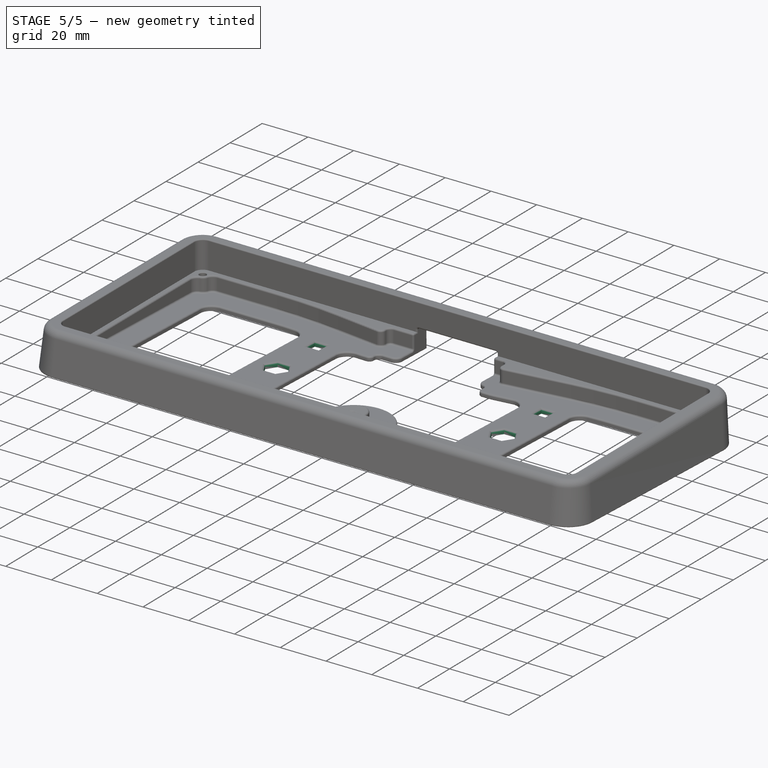
[diagram: stage 5 of 5 — iso view after this stage's code; geometry added in this stage tinted green]
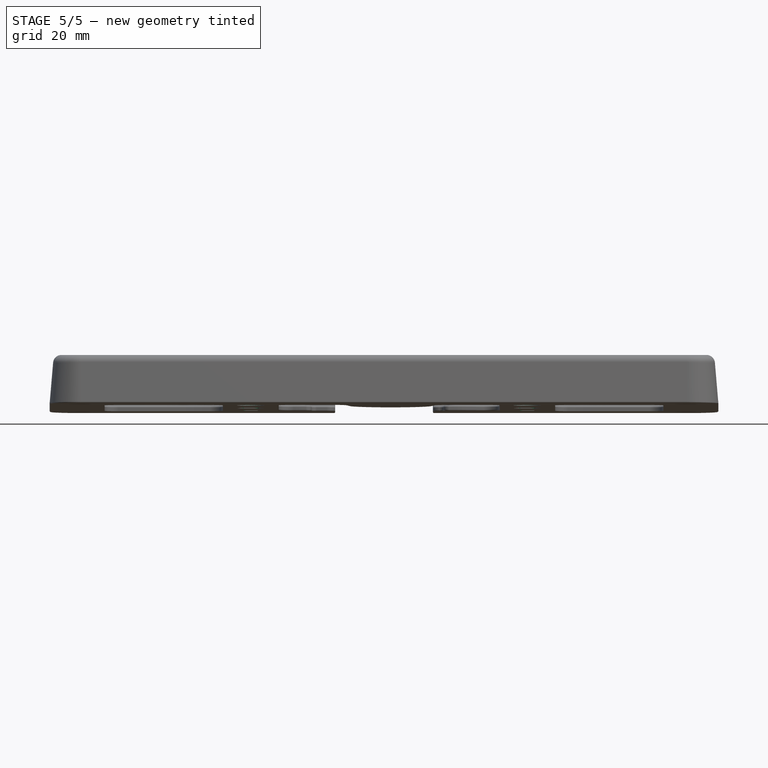
[diagram: stage 5 of 5 — front view after this stage's code; geometry added in this stage tinted green]
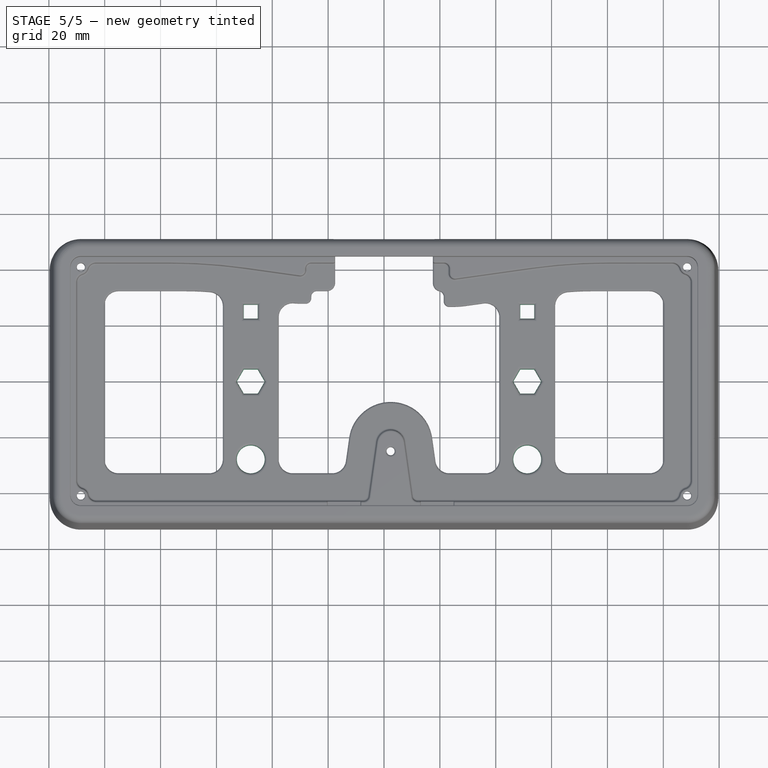
[diagram: stage 5 of 5 — top view after this stage's code; geometry added in this stage tinted green]
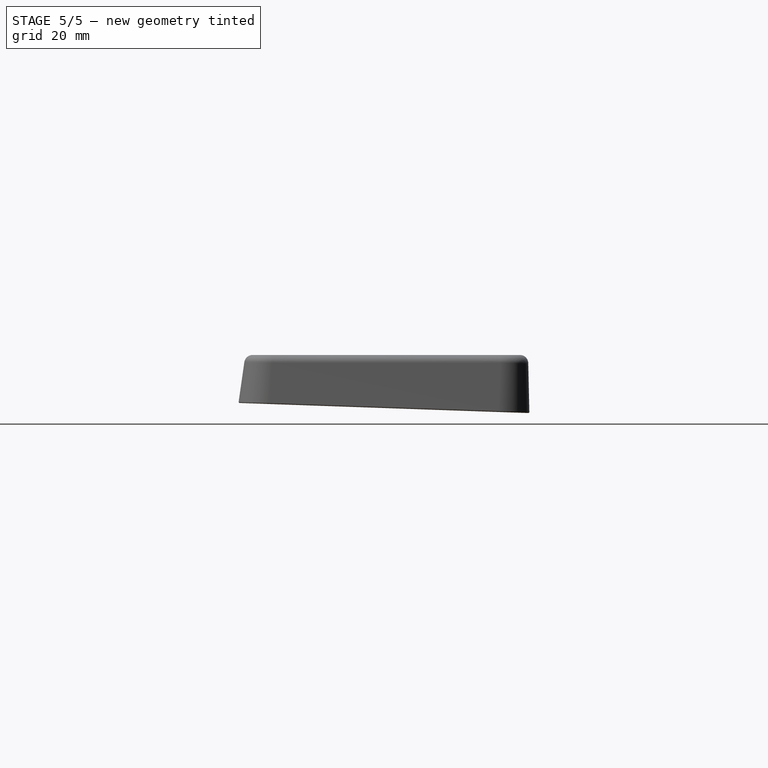
[diagram: stage 5 of 5 — right view after this stage's code; geometry added in this stage tinted green]
FEATURE [PartDesign::Fillet] Fillet006
  Base = -> Pocket004 [Edge743,Edge791,Edge790,Edge679,Edge775,Edge776,Edge678,Edge819,Edge807,Edge742]
  BaseFeature = -> Pocket004
  Radius = 0.3
  SupportTransform = false
  UseAllEdges = false
FEATURE [Sketcher::SketchObject] Sketch008
  ExternalGeometry = -> [Fillet006]
  FullyConstrained = true
  MapMode = 5
  Placement = pos=(0,0.0685385,1.96269) rot=(-1,0,0;0.034907rad)
  Support = -> [Fillet006]
  sketch-geometry (31):
    g0: LineSegment StartX=53.7841 StartY=4.33013 StartZ=0 EndX=48.7841 EndY=4.33013 EndZ=0
    g1: LineSegment StartX=48.7841 StartY=4.33013 StartZ=0 EndX=46.2841 EndY=-2.58e-14 EndZ=0
    g2: LineSegment StartX=46.2841 StartY=-2.58e-14 StartZ=0 EndX=48.7841 EndY=-4.33013 EndZ=0
    g3: LineSegment StartX=48.7841 StartY=-4.33013 StartZ=0 EndX=53.7841 EndY=-4.33013 EndZ=0
    g4: LineSegment StartX=53.7841 StartY=-4.33013 StartZ=0 EndX=56.2841 EndY=2.66e-14 EndZ=0
    g5: LineSegment StartX=56.2841 StartY=2.66e-14 StartZ=0 EndX=53.7841 EndY=4.33013 EndZ=0
    g6: Circle CenterX=51.2841 CenterY=0 CenterZ=0 NormalX=0 NormalY=0 NormalZ=1 AngleXU=0 Radius=5
    g7: GeomPoint X=41.9841 Y=0 Z=0
    g8: GeomPoint X=60.5841 Y=0 Z=0
    g9: LineSegment StartX=-45.204 StartY=-4.33013 StartZ=0 EndX=-42.704 EndY=1.8e-15 EndZ=0
    g10: LineSegment StartX=-42.704 StartY=1.8e-15 StartZ=0 EndX=-45.204 EndY=4.33013 EndZ=0
    g11: LineSegment StartX=-45.204 StartY=4.33013 StartZ=0 EndX=-50.204 EndY=4.33013 EndZ=0
    g12: LineSegment StartX=-50.204 StartY=4.33013 StartZ=0 EndX=-52.704 EndY=0 EndZ=0
    g13: LineSegment StartX=-52.704 StartY=0 StartZ=0 EndX=-50.204 EndY=-4.33013 EndZ=0
    g14: LineSegment StartX=-50.204 StartY=-4.33013 StartZ=0 EndX=-45.204 EndY=-4.33013 EndZ=0
    g15: Circle CenterX=-47.704 CenterY=0 CenterZ=0 NormalX=0 NormalY=0 NormalZ=1 AngleXU=0 Radius=5
    g16: GeomPoint X=-57.004 Y=0 Z=0
    g17: GeomPoint X=-38.404 Y=0 Z=0
    g18: GeomPoint X=-47.704 Y=25.0585 Z=0
    g19: GeomPoint X=51.2841 Y=25.0489 Z=0
    g20: LineSegment StartX=-50.204 StartY=27.5585 StartZ=0 EndX=-45.204 EndY=27.5585 EndZ=0
    g21: LineSegment StartX=-45.204 StartY=27.5585 StartZ=0 EndX=-45.204 EndY=22.5585 EndZ=0
    g22: LineSegment StartX=-45.204 StartY=22.5585 StartZ=0 EndX=-50.204 EndY=22.5585 EndZ=0
    g23: LineSegment StartX=-50.204 StartY=22.5585 StartZ=0 EndX=-50.204 EndY=27.5585 EndZ=0
    g24: LineSegment StartX=48.7841 StartY=27.5489 StartZ=0 EndX=53.7841 EndY=27.5489 EndZ=0
    g25: LineSegment StartX=53.7841 StartY=27.5489 StartZ=0 EndX=53.7841 EndY=22.5489 EndZ=0
    g26: LineSegment StartX=53.7841 StartY=22.5489 StartZ=0 EndX=48.7841 EndY=22.5489 EndZ=0
    g27: LineSegment StartX=48.7841 StartY=22.5489 StartZ=0 EndX=48.7841 EndY=27.5489 EndZ=0
    g28: GeomPoint X=-47.704 Y=-27.9104 Z=0
    g29: Circle CenterX=-47.704 CenterY=-27.9104 CenterZ=0 NormalX=0 NormalY=0 NormalZ=1 AngleXU=0 Radius=5
    g30: Circle CenterX=51.2841 CenterY=-27.9104 CenterZ=0 NormalX=0 NormalY=0 NormalZ=1 AngleXU=0 Radius=5
  constraints (69):
    c: Coincident(g0,g1)
    c: Coincident(g1,g2)
    c: Coincident(g2,g3)
    c: Coincident(g3,g4)
    c: Coincident(g4,g5)
    c: Coincident(g5,g0)
    c: Equal(g0, g1-g5) x5
    c: PointOnObject(g0,g6)
    c: PointOnObject(g1,g6)
    c: PointOnObject(g2,g6)
    c: PointOnObject(g3,g6)
    c: PointOnObject(g4,g6)
    c: PointOnObject(g5,g6)
    c: PointOnObject(g6,g-1)
    c: Parallel(g0,g-1)
    c: PointOnObject(g7,g-3)
    c: PointOnObject(g8,g-4)
    c: PointOnObject(g7,g-1)
    c: Symmetric(g7,g8,g6)
    c: Distance(g0) = 5
    c: Coincident(g9,g10)
    c: Coincident(g10,g11)
    c: Coincident(g11,g12)
    c: Coincident(g12,g13)
    c: Coincident(g13,g14)
    c: Coincident(g14,g9)
    c: Equal(g9, g10-g14) x5
    c: PointOnObject(g9,g15)
    c: PointOnObject(g10,g15)
    c: PointOnObject(g11,g15)
    c: PointOnObject(g12,g15)
    c: PointOnObject(g13,g15)
    c: PointOnObject(g14,g15)
    c: PointOnObject(g15,g-1)
    c: Parallel(g11,g-1)
    c: Distance(g11) = 5
    c: PointOnObject(g16,g-6)
    c: PointOnObject(g17,g-5)
    c: PointOnObject(g17,g-1)
    c: Symmetric(g16,g17,g15)
    c: Symmetric(g-3,g-4,g19)
    c: Symmetric(g-6,g-5,g18)
    c: Coincident(g20,g21)
    c: Coincident(g21,g22)
    c: Coincident(g22,g23)
    c: Coincident(g23,g20)
    c: Horizontal(g20)
    c: Horizontal(g22)
    c: Vertical(g21)
    c: Vertical(g23)
    c: Symmetric(g20,g21,g18)
    c: Equal(g21,g20)
    c: Distance(g20) = 5
    c: Coincident(g24,g25)
    c: Coincident(g25,g26)
    c: Coincident(g26,g27)
    c: Coincident(g27,g24)
    c: Horizontal(g24)
    c: Horizontal(g26)
    c: Vertical(g25)
    c: Vertical(g27)
    c: Symmetric(g25,g24,g19)
    c: Distance(g24) = 5
    c: Equal(g24,g25)
    c: Symmetric(g-6,g-5,g28)
    c: Coincident(g29,g28)
    c: Radius(g30) = 5
    c: Symmetric(g-3,g-4,g30)
    c: Radius(g29) = 5
FEATURE [PartDesign::Pocket] Pocket005
  BaseFeature = -> Fillet006
  Direction = (0,-0.0348995,-0.999391)
  Length = 5
  Length2 = 5
  Profile = -> Sketch008
  ReferenceAxis = -> Sketch008 [N_Axis]
  Type = 1
FEATURE [PartDesign::Fillet] Fillet007
  Base = -> Pocket005 [Edge477,Edge474,Edge484,Edge478,Edge479,Edge480,Edge475,Edge476,Edge481,Edge482,Edge483,Edge454,Edge465,Edge464,Edge469,Edge468,Edge467,Edge466,Edge470,Edge473,Edge472,Edge471]
  BaseFeature = -> Pocket005
  Radius = 1
  SupportTransform = false
  UseAllEdges = false
FEATURE [PartDesign::Body] Body
  Group = -> [Sketch,Sketch001,AdditiveLoft,Sketch002,Pocket,Sketch003,Pocket001,Sketch004,Hole,Sketch005,Pocket002,Sketch006,Pocket003,Fillet,Fillet001,Fillet002,Fillet003,Fillet004,Chamfer,Fillet005,Sketch007,Pocket004,Fillet006,Sketch008,Pocket005,Fillet007]
  Origin = -> Origin
  Placement = pos=(0,0,0) rot=(1,0,0;0.069813rad)
  Tip = -> Fillet007
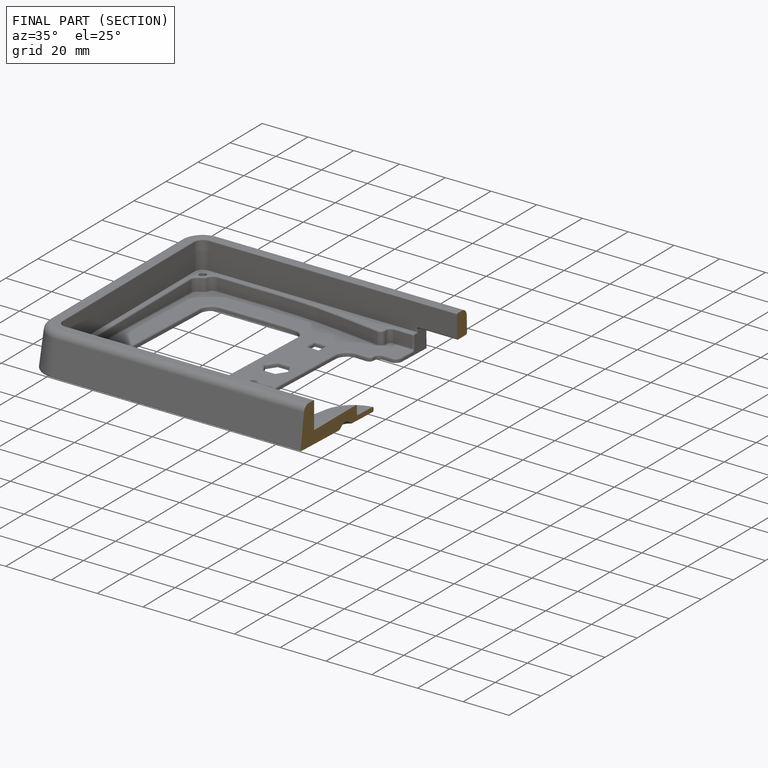
[diagram: finished part — half-section view (interior)]
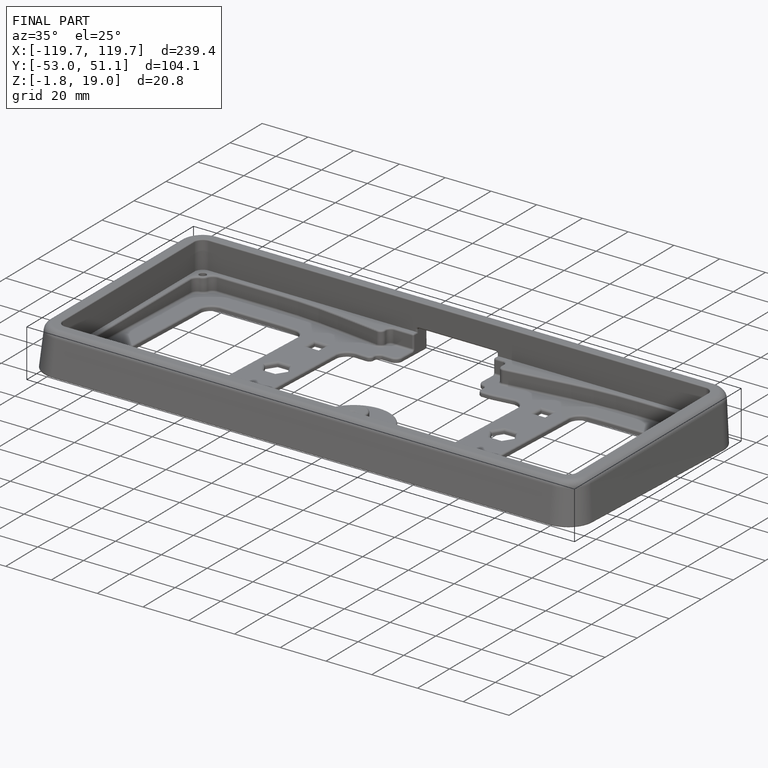
[diagram: finished part — iso view with bounding-box wireframe]
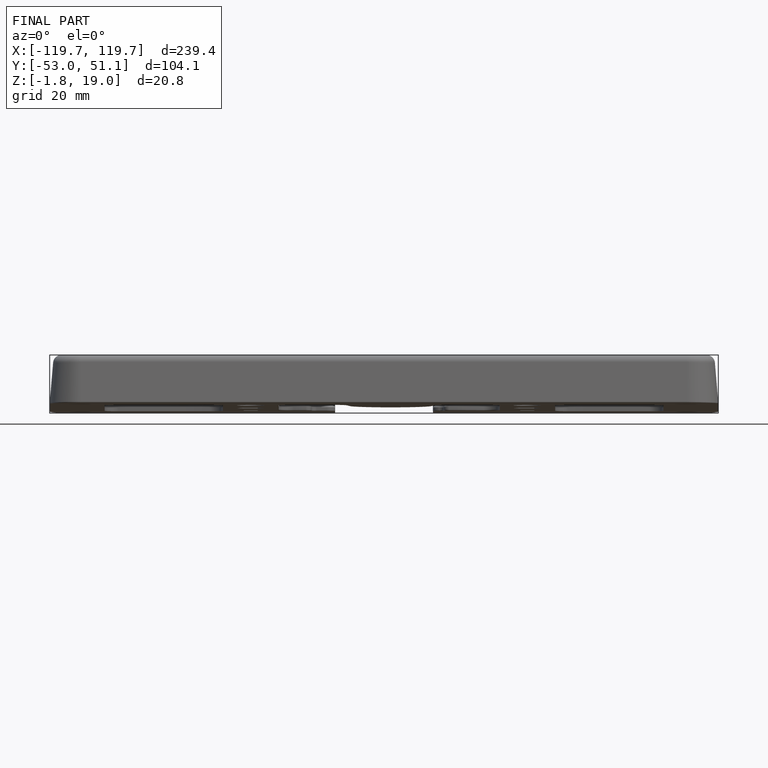
[diagram: finished part — front view with bounding-box wireframe]
